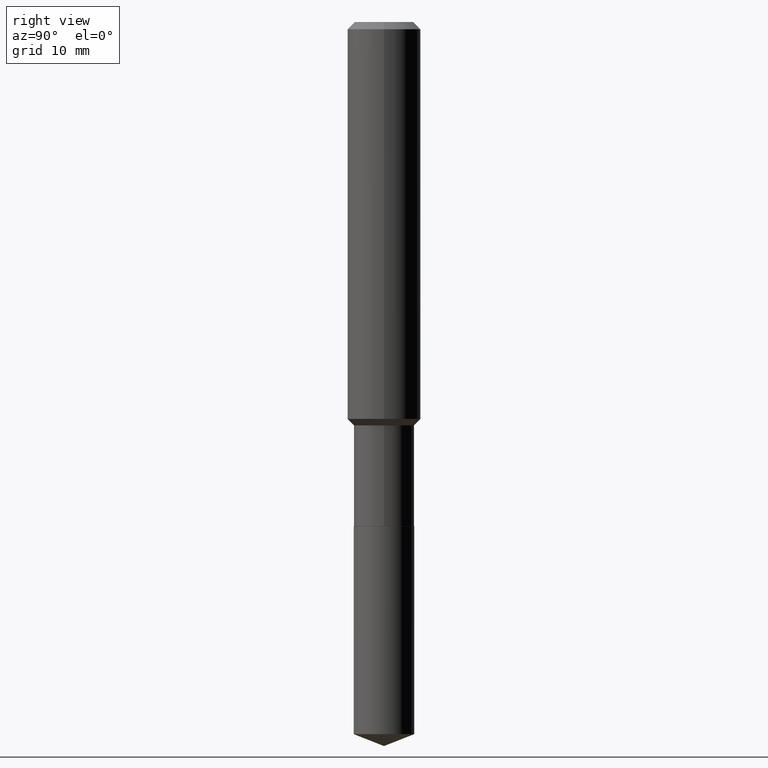
[diagram: clean part render]
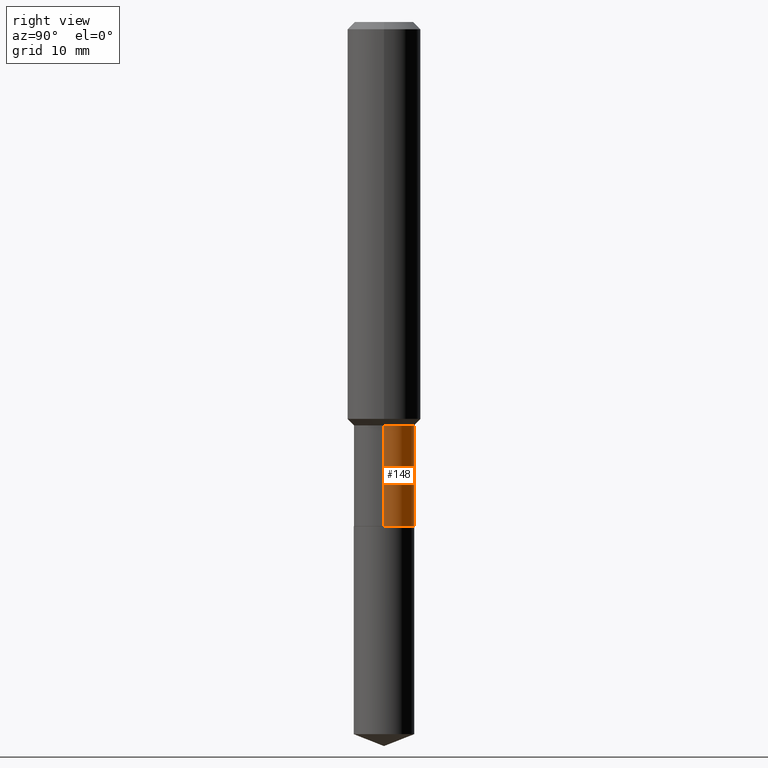
[diagram: same view with one face highlighted and labeled with its STEP entity id]
A machine part, right view. The second image highlights one B-rep face of the part: STEP entity #148.
In plain terms, the highlighted cylindrical surface (edge-blend (fillet) strip) has radius 3.2995 mm, axis along (-0, 0, 1).
Its self-contained STEP definition (entity closure, byte-faithful):
#22 = DIRECTION ( 'NONE',  ( -2.445468806185136597E-29, 3.491481338843145583E-15, 1.000000000000000000 ) ) ;
#27 = VECTOR ( 'NONE', #203, 39.37007874015748143 ) ;
#45 = CARTESIAN_POINT ( 'NONE',  ( 0.1298999999999999877, -8.465445654159088005E-15, -2.164800000000000058 ) ) ;
#46 = LINE ( 'NONE', #305, #141 ) ;
#62 = ORIENTED_EDGE ( 'NONE', *, *, #376, .T. ) ;
#79 = DIRECTION ( 'NONE',  ( -2.445468806185136597E-29, 3.491481338843145583E-15, 1.000000000000000000 ) ) ;
#83 = CARTESIAN_POINT ( 'NONE',  ( 0.1298999999999999599, -9.070868518314457948E-16, 6.334153631758918028E-30 ) ) ;
#96 = CARTESIAN_POINT ( 'NONE',  ( 4.237019253596368185E-29, -6.049340567679635558E-15, -1.732600000000000362 ) ) ;
#106 = CARTESIAN_POINT ( 'NONE',  ( -0.1298999999999999877, -5.880854671251267548E-15, -2.164800000000000058 ) ) ;
#113 = EDGE_CURVE ( 'NONE', #368, #167, #46, .T. ) ;
#117 = DIRECTION ( 'NONE',  ( -2.445468806185136877E-29, 3.491481338843145188E-15, 1.000000000000000000 ) ) ;
#141 = VECTOR ( 'NONE', #117, 39.37007874015748143 ) ;
#144 = DIRECTION ( 'NONE',  ( -2.445468806185136597E-29, 3.491481338843145583E-15, 1.000000000000000000 ) ) ;
#148 = ADVANCED_FACE ( 'NONE', ( #410 ), #361, .T. ) ;
#159 = DIRECTION ( 'NONE',  ( 1.000000000000000000, -6.982962677686268288E-15, 0.000000000000000000 ) ) ;
#167 = VERTEX_POINT ( 'NONE', #262 ) ;
#168 = EDGE_LOOP ( 'NONE', ( #62, #201, #290, #308 ) ) ;
#175 = DIRECTION ( 'NONE',  ( 1.000000000000000000, -6.982962677686263555E-15, 0.000000000000000000 ) ) ;
#201 = ORIENTED_EDGE ( 'NONE', *, *, #113, .T. ) ;
#203 = DIRECTION ( 'NONE',  ( -2.445468806185136877E-29, 3.491481338843145188E-15, 1.000000000000000000 ) ) ;
#224 = DIRECTION ( 'NONE',  ( 1.000000000000000000, -6.982962677686266711E-15, 4.876176775795935232E-29 ) ) ;
#231 = EDGE_CURVE ( 'NONE', #278, #167, #312, .T. ) ;
#235 = CARTESIAN_POINT ( 'NONE',  ( 5.293950871629583880E-29, -7.558358802327641618E-15, -2.164800000000000058 ) ) ;
#251 = AXIS2_PLACEMENT_3D ( 'NONE', #295, #144, #224 ) ;
#262 = CARTESIAN_POINT ( 'NONE',  ( -0.1298999999999999322, -5.880854671251268337E-15, -1.732600000000000362 ) ) ;
#278 = VERTEX_POINT ( 'NONE', #343 ) ;
#290 = ORIENTED_EDGE ( 'NONE', *, *, #231, .F. ) ;
#295 = CARTESIAN_POINT ( 'NONE',  ( 0.000000000000000000, 0.000000000000000000, 0.000000000000000000 ) ) ;
#300 = AXIS2_PLACEMENT_3D ( 'NONE', #96, #22, #175 ) ;
#304 = LINE ( 'NONE', #83, #27 ) ;
#305 = CARTESIAN_POINT ( 'NONE',  ( -0.1298999999999999599, 9.229950137523698568E-16, -6.389696682241120408E-30 ) ) ;
#308 = ORIENTED_EDGE ( 'NONE', *, *, #355, .F. ) ;
#312 = CIRCLE ( 'NONE', #300, 0.1298999999999999322 ) ;
#328 = CIRCLE ( 'NONE', #478, 0.1298999999999999877 ) ;
#343 = CARTESIAN_POINT ( 'NONE',  ( 0.1298999999999999322, -6.956427419511080367E-15, -1.732600000000000362 ) ) ;
#355 = EDGE_CURVE ( 'NONE', #463, #278, #304, .T. ) ;
#361 = CYLINDRICAL_SURFACE ( 'NONE', #251, 0.1298999999999999599 ) ;
#368 = VERTEX_POINT ( 'NONE', #106 ) ;
#376 = EDGE_CURVE ( 'NONE', #463, #368, #328, .T. ) ;
#410 = FACE_OUTER_BOUND ( 'NONE', #168, .T. ) ;
#463 = VERTEX_POINT ( 'NONE', #45 ) ;
#478 = AXIS2_PLACEMENT_3D ( 'NONE', #235, #79, #159 ) ;